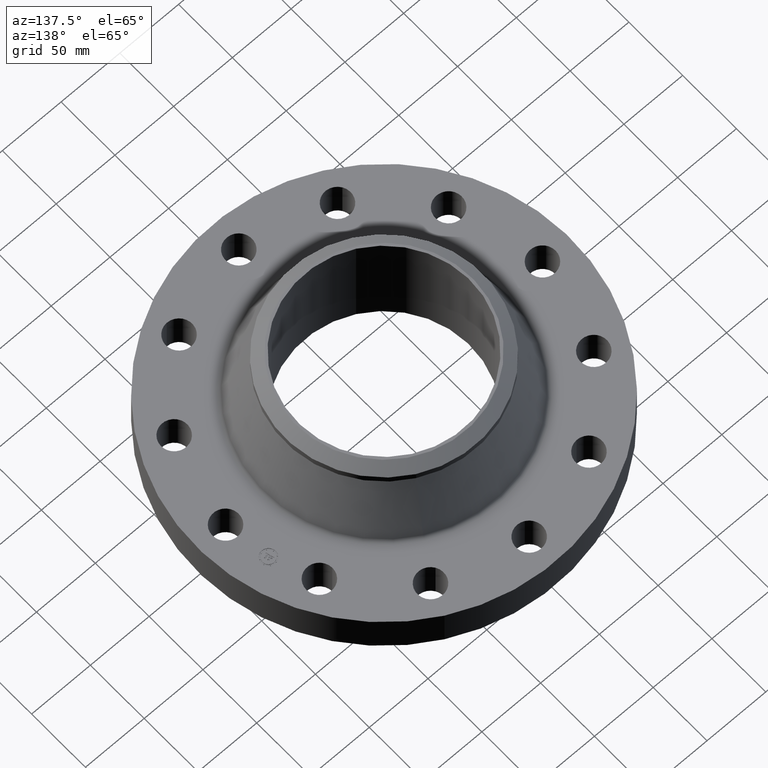
[diagram: clean part render]
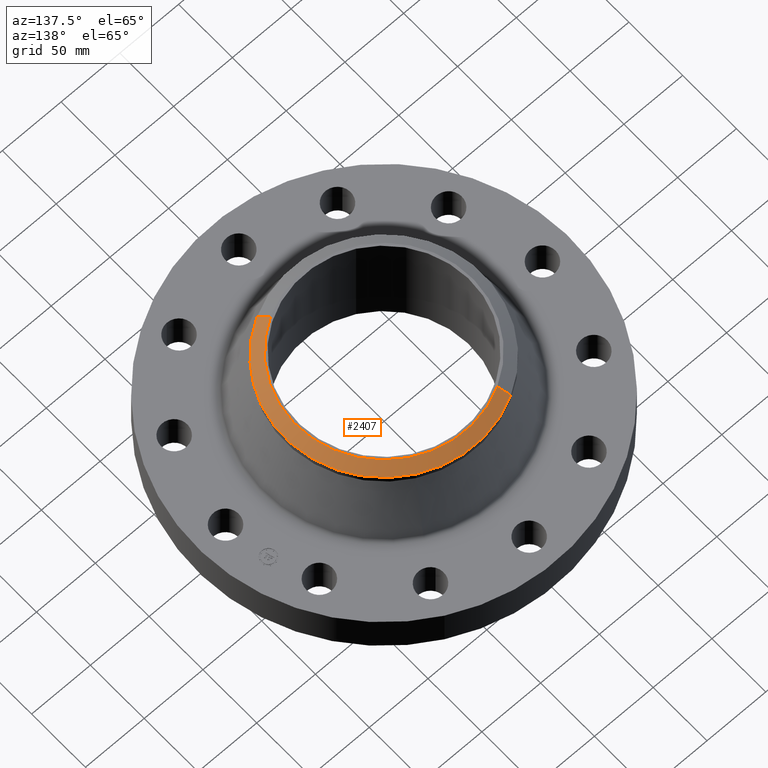
[diagram: same view with one face highlighted and labeled with its STEP entity id]
A machine part, auxiliary view. The second image highlights one B-rep face of the part: STEP entity #2407.
In plain terms, the highlighted conical surface has half-angle 52.5 deg.
Its self-contained STEP definition (entity closure, byte-faithful):
#1709=AXIS2_PLACEMENT_3D('Circle Axis2P3D',#1707,#1708,$) ;
#1765=AXIS2_PLACEMENT_3D('Circle Axis2P3D',#1763,#1764,$) ;
#2388=AXIS2_PLACEMENT_3D('Cone Axis2P3D',#2385,#2386,#2387) ;
#1707=CARTESIAN_POINT('Axis2P3D Location',(-1.28115191247E-011,-1.07840245919E-011,3.82000000002)) ;
#1711=CARTESIAN_POINT('Vertex',(1.41873530636,-2.59697755866,3.82000000002)) ;
#1713=CARTESIAN_POINT('Vertex',(-1.41873530636,2.59697755866,3.82000000002)) ;
#1746=CARTESIAN_POINT('Vertex',(1.58929566048,2.90918619267,3.5470158716)) ;
#1760=CARTESIAN_POINT('Vertex',(-1.58929566048,2.90918619268,3.5470158716)) ;
#1763=CARTESIAN_POINT('Axis2P3D Location',(0.,0.,3.5470158716)) ;
#1789=CARTESIAN_POINT('Control Point',(1.58929566048,2.90918619267,3.54701587161)) ;
#1790=CARTESIAN_POINT('Control Point',(1.90081024939,2.73900499713,3.54701587161)) ;
#1791=CARTESIAN_POINT('Control Point',(2.18954616341,2.5271277169,3.54701587161)) ;
#1792=CARTESIAN_POINT('Control Point',(2.44805487116,2.2776115224,3.54701587161)) ;
#1793=CARTESIAN_POINT('Control Point',(2.89198114421,1.7154984521,3.54701587161)) ;
#1794=CARTESIAN_POINT('Control Point',(3.17245217996,1.05642513462,3.54701587161)) ;
#1795=CARTESIAN_POINT('Control Point',(3.26748756471,0.709937964666,3.5470158716)) ;
#1796=CARTESIAN_POINT('Control Point',(3.36251243531,-7.65483347693E-013,3.5470158716)) ;
#1797=CARTESIAN_POINT('Control Point',(3.26748756471,-0.709937964668,3.5470158716)) ;
#1798=CARTESIAN_POINT('Control Point',(3.17245217996,-1.05642513462,3.5470158716)) ;
#1799=CARTESIAN_POINT('Control Point',(2.89198114421,-1.7154984521,3.5470158716)) ;
#1800=CARTESIAN_POINT('Control Point',(2.44805487116,-2.2776115224,3.5470158716)) ;
#1801=CARTESIAN_POINT('Control Point',(2.18954616341,-2.5271277169,3.5470158716)) ;
#1802=CARTESIAN_POINT('Control Point',(1.90081024939,-2.73900499713,3.5470158716)) ;
#1803=CARTESIAN_POINT('Control Point',(1.58929566048,-2.90918619268,3.5470158716)) ;
#1804=CARTESIAN_POINT('Vertex',(1.58929566048,-2.90918619268,3.54701587161)) ;
#2385=CARTESIAN_POINT('Axis2P3D Location',(0.,0.,3.82000000002)) ;
#2390=CARTESIAN_POINT('Line Origine',(-1.50401548342,2.75308187567,3.68350793582)) ;
#2395=CARTESIAN_POINT('Line Origine',(1.50401548342,-2.75308187567,3.68350793582)) ;
#1708=DIRECTION('Axis2P3D Direction',(0.,0.,-0.0393700787402)) ;
#1764=DIRECTION('Axis2P3D Direction',(-0.,0.,-0.0393700787402)) ;
#2386=DIRECTION('Axis2P3D Direction',(-0.,-0.,-0.0393700787402)) ;
#2387=DIRECTION('Axis2P3D XDirection',(-0.0188750212049,0.0345504945626,0.)) ;
#2391=DIRECTION('Vector Direction',(-0.014974561121,0.02741075027,-0.023966985394)) ;
#2396=DIRECTION('Vector Direction',(0.014974561121,-0.02741075027,-0.023966985394)) ;
#2392=VECTOR('Line Direction',#2391,0.0393700787402) ;
#2397=VECTOR('Line Direction',#2396,0.0393700787402) ;
#2401=ORIENTED_EDGE('',*,*,#2394,.F.) ;
#2402=ORIENTED_EDGE('',*,*,#1715,.F.) ;
#2403=ORIENTED_EDGE('',*,*,#2399,.T.) ;
#2404=ORIENTED_EDGE('',*,*,#1806,.T.) ;
#2405=ORIENTED_EDGE('',*,*,#1767,.F.) ;
#2407=ADVANCED_FACE('PartBody',(#2406),#2389,.T.) ;
#1788=B_SPLINE_CURVE_WITH_KNOTS('',5,(#1789,#1790,#1791,#1792,#1793,#1794,#1795,#1796,#1797,#1798,#1799,#1800,#1801,#1802,#1803),.UNSPECIFIED.,.F.,.U.,(6,3,3,3,6),(-90.1621215127,-45.0810607564,0.,45.0810607564,90.1621215127),.UNSPECIFIED.) ;
#1710=CIRCLE('generated circle',#1709,2.95924015749) ;
#1766=CIRCLE('generated circle',#1765,3.31500000001) ;
#2389=CONICAL_SURFACE('Cone',#2388,2.95924015749,0.916297857297) ;
#1715=EDGE_CURVE('',#1712,#1714,#1710,.F.) ;
#1767=EDGE_CURVE('',#1761,#1747,#1766,.T.) ;
#1806=EDGE_CURVE('',#1805,#1747,#1788,.F.) ;
#2394=EDGE_CURVE('',#1714,#1761,#2393,.T.) ;
#2399=EDGE_CURVE('',#1712,#1805,#2398,.T.) ;
#2400=EDGE_LOOP('',(#2401,#2402,#2403,#2404,#2405)) ;
#2406=FACE_OUTER_BOUND('',#2400,.T.) ;
#2393=LINE('Line',#2390,#2392) ;
#2398=LINE('Line',#2395,#2397) ;
#1712=VERTEX_POINT('',#1711) ;
#1714=VERTEX_POINT('',#1713) ;
#1747=VERTEX_POINT('',#1746) ;
#1761=VERTEX_POINT('',#1760) ;
#1805=VERTEX_POINT('',#1804) ;